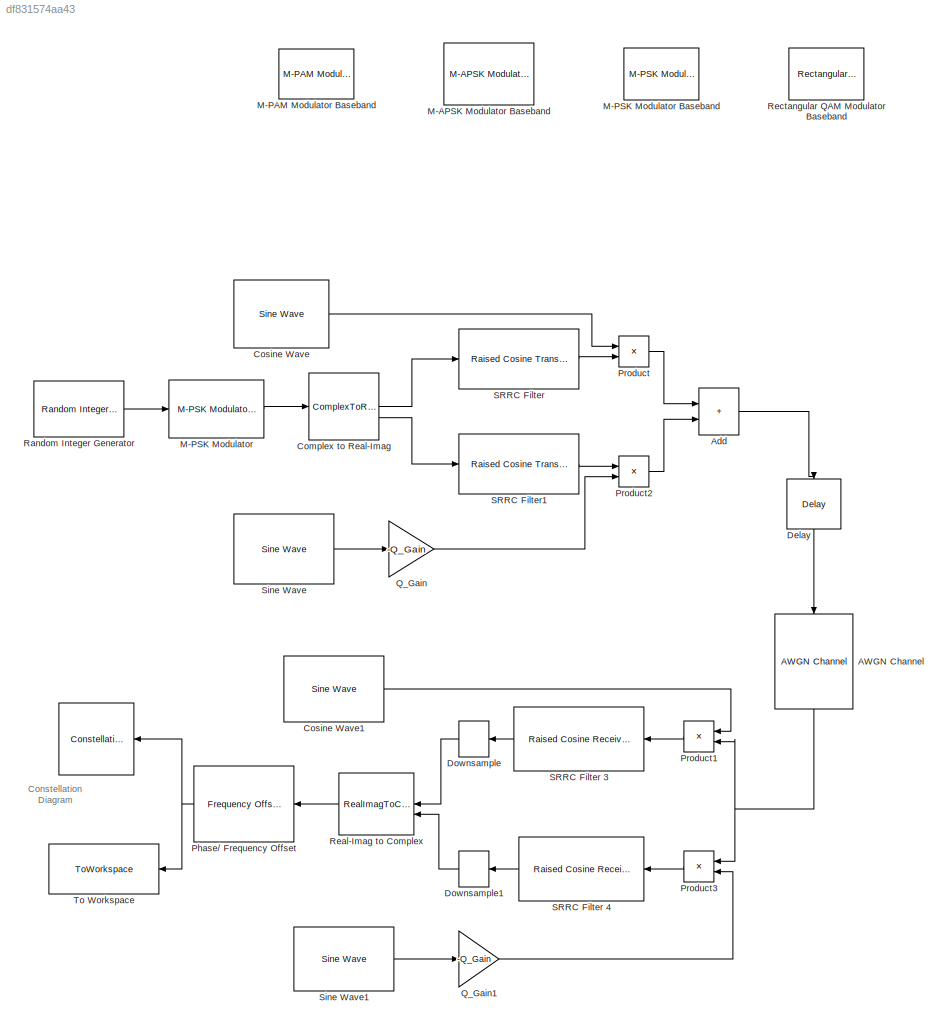
MODEL slx_df831574aa43
KIND model
CONFIG AbsTol = auto
CONFIG EnableMultiTasking = off
CONFIG FixedStep = auto
CONFIG MaxStep = auto
CONFIG MinStep = auto
CONFIG RelTol = 1e-3
CONFIG SampleTimeConstraint = Unconstrained
CONFIG SolverName = VariableStepAuto
CONFIG StartTime = 0.0
CONFIG StopTime = 5.1
BLOCK [ConstellationDiagram]  
  DefaultConfigurationName = comm.scopes.ConstellationDiagramBlockCfg
  GraphicalSettings = {"Style":{"BackgroundColor":[0.12941176470588237,0.12941176470588237,0.12941176470588237],"AxesColor":[0.07058823529411765,0.07058823529411765,0.07058823529411765],"LabelsColor":[0.8509803921568627,0.8509803921568627,0.8509803921568627],"LineStyle":["-","NONE"],"LineColor":[[1,1,0.06666666666666667],[1,0,0]],"LineWidth":[1,1],"Marker":[".","+"],"IsRefLine":[false,true],"FontSize":"small"}}
  NameLocation = right
  ScopeFrameLocation = window
  ScopeSpecificationString = comm.scopes.ConstellationDiagramBlockCfg('CurrentConfiguration', extmgr.ConfigurationSet(extmgr.Configuration('Tools','Measurements',true),extmgr.Configuration('Core','General UI',true,'ShowNewAction',false,'ShowLoadConfigSet',false,'ShowSaveConfigSet',false,'FigureColor',[0.156862745098039 0.156862745098039 0.156862745098039]),extmgr.Configuration('Tools','Plot Navigation',true,'XDataDisplay',80,...<+365ch>
  SymbolsToDisplay = 1000
  SymbolsToDisplaySource = Property
  WasSavedAsWebScope = on
  WindowPosition = [676.000000,166.000000,600.000000,600.000000,]
  XLimits = [-1.46,1.46]
  YLimits = [-1.38,1.38]
BLOCK [Reference] AWGN Channel  REF=commchan3/AWGN
Channel
  NameLocation = right
  SourceBlock = commchan3/AWGN\nChannel
  SourceType = AWGN Channel
  UserDataPersistent = on
BLOCK [Sum] Add
  IconShape = rectangular
BLOCK [ComplexToRealImag] Complex to Real-Imag
BLOCK [Reference] Cosine Wave  REF=dspsrcs4/Sine Wave
  LibrarySourceBlock = dsphdlsupportsrcs/Sine Wave
  SourceBlock = dspsrcs4/Sine Wave
  SourceType = Sine Wave
BLOCK [Reference] Cosine Wave1  REF=dspsrcs4/Sine Wave
  LibrarySourceBlock = dsphdlsupportsrcs/Sine Wave
  SourceBlock = dspsrcs4/Sine Wave
  SourceType = Sine Wave
BLOCK [Delay] Delay
  DelayLength = T_delay
  InputPortMap = u0
  NameLocation = right
BLOCK [DownSample] Downsample
  InputProcessing = Elements as channels (sample based)
  N = 8
  NameLocation = top
  RateOptions = Allow multirate processing
BLOCK [DownSample] Downsample1
  InputProcessing = Elements as channels (sample based)
  N = 8
  RateOptions = Allow multirate processing
BLOCK [Reference] M-APSK Modulator Baseband  REF=commdigbbndapm/M-APSK
Modulator Baseband
  SourceBlock = commdigbbndapm/M-APSK\nModulator Baseband
  SourceType = M-APSK Modulator Baseband
BLOCK [Reference] M-PAM Modulator Baseband  REF=commdigbbndam3/M-PAM
Modulator
Baseband
  SourceBlock = commdigbbndam3/M-PAM\nModulator\nBaseband
  SourceType = M-PAM Modulator Baseband
BLOCK [Reference] M-PSK Modulator   REF=commdigbbndpm3/M-PSK
Modulator
Baseband
  LibrarySourceBlock = commhdldigbbndpm/M-PSK\nModulator\nBaseband
  SourceBlock = commdigbbndpm3/M-PSK\nModulator\nBaseband
  SourceType = M-PSK Modulator Baseband
BLOCK [Reference] M-PSK Modulator Baseband  REF=commdigbbndpm3/M-PSK
Modulator
Baseband
  LibrarySourceBlock = commhdldigbbndpm/M-PSK\nModulator\nBaseband
  SourceBlock = commdigbbndpm3/M-PSK\nModulator\nBaseband
  SourceType = M-PSK Modulator Baseband
BLOCK [Reference] Phase// Frequency Offset  REF=commrflib2/Phase//
Frequency
Offset
  SourceBlock = commrflib2/Phase//\nFrequency\nOffset
  SourceType = Phase/Frequency Offset
BLOCK [Product] Product
BLOCK [Product] Product1
BLOCK [Product] Product2
BLOCK [Product] Product3
BLOCK [Gain] Q_Gain
  Gain = -Q_Gain
BLOCK [Gain] Q_Gain1
  Gain = -Q_Gain
BLOCK [Reference] Random Integer Generator  REF=commrandsrc3/Random Integer
Generator
  SourceBlock = commrandsrc3/Random Integer\nGenerator
  SourceType = Random Integer Generator
BLOCK [RealImagToComplex] Real-Imag to Complex
BLOCK [Reference] Rectangular QAM Modulator Baseband  REF=commdigbbndam3/Rectangular QAM
Modulator
Baseband
  SourceBlock = commdigbbndam3/Rectangular QAM\nModulator\nBaseband
  SourceType = Rectangular QAM Modulator Baseband
BLOCK [Reference] SRRC Filter  REF=commfilt2/Raised Cosine
Transmit Filter
  LibrarySourceBlock = commhdlfilt/Raised Cosine\nTransmit Filter
  SourceBlock = commfilt2/Raised Cosine\nTransmit Filter
  SourceType = Raised Cosine Transmit Filter
  UserDataPersistent = on
BLOCK [Reference] SRRC Filter 3  REF=commfilt2/Raised Cosine
Receive Filter
  LibrarySourceBlock = commhdlfilt/Raised Cosine\nReceive Filter
  SourceBlock = commfilt2/Raised Cosine\nReceive Filter
  SourceType = Raised Cosine Receive Filter
  UserDataPersistent = on
BLOCK [Reference] SRRC Filter 4  REF=commfilt2/Raised Cosine
Receive Filter
  LibrarySourceBlock = commhdlfilt/Raised Cosine\nReceive Filter
  SourceBlock = commfilt2/Raised Cosine\nReceive Filter
  SourceType = Raised Cosine Receive Filter
  UserDataPersistent = on
BLOCK [Reference] SRRC Filter1  REF=commfilt2/Raised Cosine
Transmit Filter
  LibrarySourceBlock = commhdlfilt/Raised Cosine\nTransmit Filter
  SourceBlock = commfilt2/Raised Cosine\nTransmit Filter
  SourceType = Raised Cosine Transmit Filter
  UserDataPersistent = on
BLOCK [Reference] Sine Wave  REF=dspsrcs4/Sine Wave
  LibrarySourceBlock = dsphdlsupportsrcs/Sine Wave
  SourceBlock = dspsrcs4/Sine Wave
  SourceType = Sine Wave
BLOCK [Reference] Sine Wave1  REF=dspsrcs4/Sine Wave
  LibrarySourceBlock = dsphdlsupportsrcs/Sine Wave
  SourceBlock = dspsrcs4/Sine Wave
  SourceType = Sine Wave
BLOCK [ToWorkspace] To Workspace
  FixptAsFi = on
  MaxDataPoints = inf
  SampleTime = -1
  Save2DSignal = 2-D array (concatenate along first dimension)
  VariableName = QAM
ANNOTATION (root): Constellation Diagram
NET AWGN Channel:1 -> Product1:2, Product3:1
LINE Add:1 -> Delay:1
LINE Complex to Real-Imag:1 -> SRRC Filter:1
LINE Complex to Real-Imag:2 -> SRRC Filter1:1
LINE Cosine Wave1:1 -> Product1:1
LINE Cosine Wave:1 -> Product:1
LINE Delay:1 -> AWGN Channel:1
LINE Downsample1:1 -> Real-Imag to Complex:2
LINE Downsample:1 -> Real-Imag to Complex:1
LINE M-PSK Modulator :1 -> Complex to Real-Imag:1
NET Phase// Frequency Offset:1 ->  :1, To Workspace:1
LINE Product1:1 -> SRRC Filter 3:1
LINE Product2:1 -> Add:2
LINE Product3:1 -> SRRC Filter 4:1
LINE Product:1 -> Add:1
LINE Q_Gain1:1 -> Product3:2
LINE Q_Gain:1 -> Product2:2
LINE Random Integer Generator:1 -> M-PSK Modulator :1
LINE Real-Imag to Complex:1 -> Phase// Frequency Offset:1
LINE SRRC Filter 3:1 -> Downsample:1
LINE SRRC Filter 4:1 -> Downsample1:1
LINE SRRC Filter1:1 -> Product2:1
LINE SRRC Filter:1 -> Product:2
LINE Sine Wave1:1 -> Q_Gain1:1
LINE Sine Wave:1 -> Q_Gain:1
note: NET lines group one-source signal fan-out (src -> all destinations, sorted); 1:1 wires keep LINE
